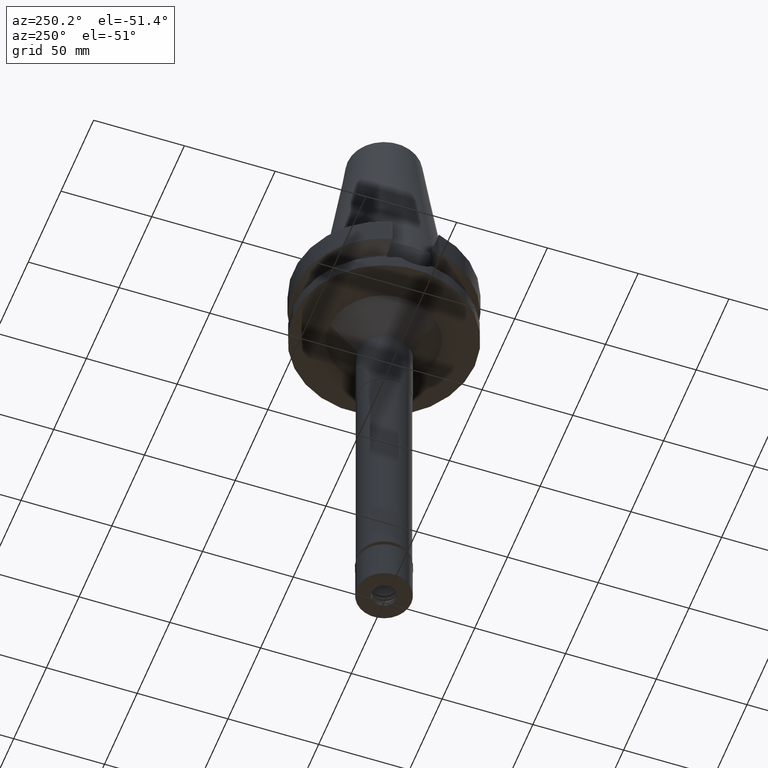
[diagram: clean part render]
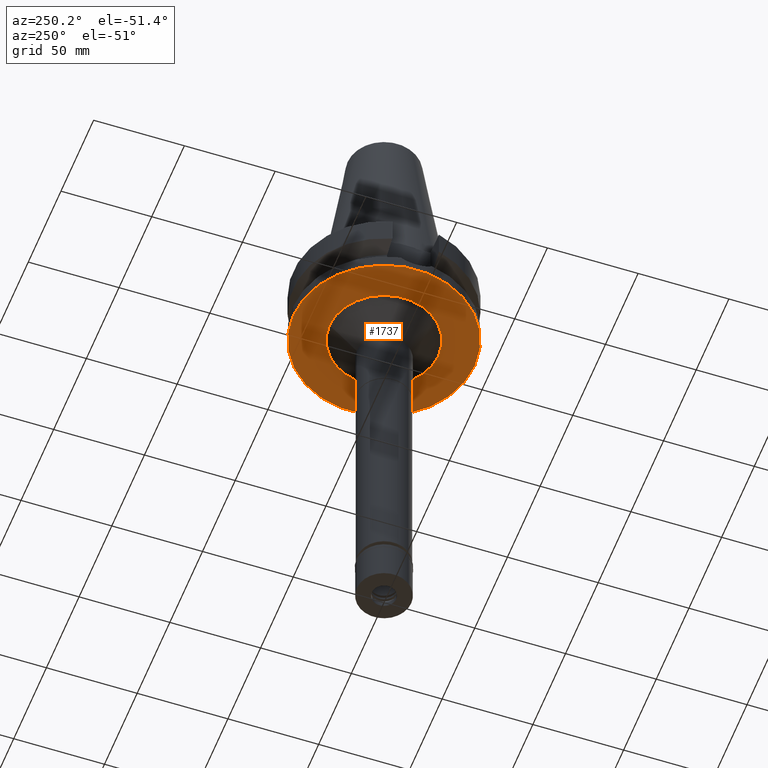
[diagram: same view with one face highlighted and labeled with its STEP entity id]
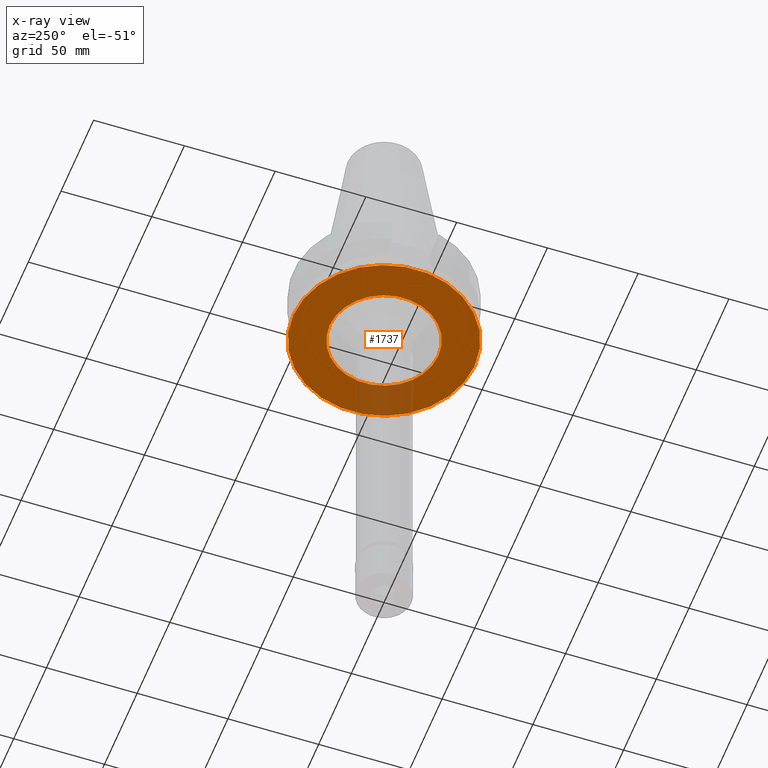
[diagram: x-ray of the same camera — body ghosted, the highlighted face saturated]
A machine part, auxiliary view. The second image highlights one B-rep face of the part: STEP entity #1737.
The next image is the same camera in x-ray: the body ghosted, the highlighted face saturated — about 12% of this face is hidden behind the body in this view.
In plain terms, the highlighted planar face has unit normal (0, 0, -1).
Its self-contained STEP definition (entity closure, byte-faithful):
#8 = EDGE_CURVE ( 'NONE', #971, #1067, #1905, .T. ) ;
#12 = DIRECTION ( 'NONE',  ( 0.0000000000000000000, 0.0000000000000000000, -1.000000000000000000 ) ) ;
#107 = CARTESIAN_POINT ( 'NONE',  ( 0.0000000000000000000, 2.680629378654000054E-14, -38.00000000000000000 ) ) ;
#127 = VERTEX_POINT ( 'NONE', #250 ) ;
#221 = CIRCLE ( 'NONE', #2951, 50.00000000000000000 ) ;
#230 = DIRECTION ( 'NONE',  ( 0.0000000000000000000, 0.0000000000000000000, 1.000000000000000000 ) ) ;
#250 = CARTESIAN_POINT ( 'NONE',  ( 0.0000000000000000000, 30.00000000000000000, -38.00000000000000000 ) ) ;
#260 = CARTESIAN_POINT ( 'NONE',  ( 0.0000000000000000000, -50.00000000000000000, -38.00000000000000000 ) ) ;
#262 = EDGE_LOOP ( 'NONE', ( #499, #1266 ) ) ;
#424 = CARTESIAN_POINT ( 'NONE',  ( 0.0000000000000000000, 0.0000000000000000000, -38.00000000000000000 ) ) ;
#440 = DIRECTION ( 'NONE',  ( 0.0000000000000000000, -1.000000000000000000, 0.0000000000000000000 ) ) ;
#499 = ORIENTED_EDGE ( 'NONE', *, *, #8, .F. ) ;
#817 = CARTESIAN_POINT ( 'NONE',  ( 0.0000000000000000000, -30.00000000000000000, -38.00000000000000000 ) ) ;
#922 = PLANE ( 'NONE',  #2170 ) ;
#971 = VERTEX_POINT ( 'NONE', #1952 ) ;
#1067 = VERTEX_POINT ( 'NONE', #260 ) ;
#1169 = EDGE_CURVE ( 'NONE', #127, #1834, #2966, .T. ) ;
#1186 = DIRECTION ( 'NONE',  ( 0.0000000000000000000, 0.0000000000000000000, -1.000000000000000000 ) ) ;
#1266 = ORIENTED_EDGE ( 'NONE', *, *, #2522, .F. ) ;
#1348 = CIRCLE ( 'NONE', #2652, 30.00000000000000000 ) ;
#1370 = EDGE_LOOP ( 'NONE', ( #1846, #2146 ) ) ;
#1442 = CARTESIAN_POINT ( 'NONE',  ( 0.0000000000000000000, 2.680629378654000054E-14, -38.00000000000000000 ) ) ;
#1457 = FACE_OUTER_BOUND ( 'NONE', #262, .T. ) ;
#1480 = AXIS2_PLACEMENT_3D ( 'NONE', #107, #2853, #1837 ) ;
#1544 = AXIS2_PLACEMENT_3D ( 'NONE', #424, #1186, #1922 ) ;
#1695 = DIRECTION ( 'NONE',  ( 0.0000000000000000000, 0.0000000000000000000, -1.000000000000000000 ) ) ;
#1737 = ADVANCED_FACE ( 'NONE', ( #1457, #2209 ), #922, .T. ) ;
#1834 = VERTEX_POINT ( 'NONE', #817 ) ;
#1837 = DIRECTION ( 'NONE',  ( 0.0000000000000000000, 1.000000000000000000, 0.0000000000000000000 ) ) ;
#1846 = ORIENTED_EDGE ( 'NONE', *, *, #1169, .F. ) ;
#1905 = CIRCLE ( 'NONE', #1480, 50.00000000000000000 ) ;
#1909 = EDGE_CURVE ( 'NONE', #1834, #127, #1348, .T. ) ;
#1922 = DIRECTION ( 'NONE',  ( 0.0000000000000000000, 1.000000000000000000, 0.0000000000000000000 ) ) ;
#1925 = CARTESIAN_POINT ( 'NONE',  ( 0.0000000000000000000, 0.0000000000000000000, -38.00000000000000000 ) ) ;
#1952 = CARTESIAN_POINT ( 'NONE',  ( 0.0000000000000000000, 50.00000000000000000, -38.00000000000000000 ) ) ;
#2146 = ORIENTED_EDGE ( 'NONE', *, *, #1909, .F. ) ;
#2170 = AXIS2_PLACEMENT_3D ( 'NONE', #1925, #1695, #440 ) ;
#2177 = DIRECTION ( 'NONE',  ( 0.0000000000000000000, -1.000000000000000000, 0.0000000000000000000 ) ) ;
#2209 = FACE_BOUND ( 'NONE', #1370, .T. ) ;
#2256 = CARTESIAN_POINT ( 'NONE',  ( 0.0000000000000000000, 0.0000000000000000000, -38.00000000000000000 ) ) ;
#2269 = DIRECTION ( 'NONE',  ( 0.0000000000000000000, -1.000000000000000000, 0.0000000000000000000 ) ) ;
#2522 = EDGE_CURVE ( 'NONE', #1067, #971, #221, .T. ) ;
#2652 = AXIS2_PLACEMENT_3D ( 'NONE', #2256, #12, #2269 ) ;
#2853 = DIRECTION ( 'NONE',  ( 0.0000000000000000000, 0.0000000000000000000, 1.000000000000000000 ) ) ;
#2951 = AXIS2_PLACEMENT_3D ( 'NONE', #1442, #230, #2177 ) ;
#2966 = CIRCLE ( 'NONE', #1544, 30.00000000000000000 ) ;